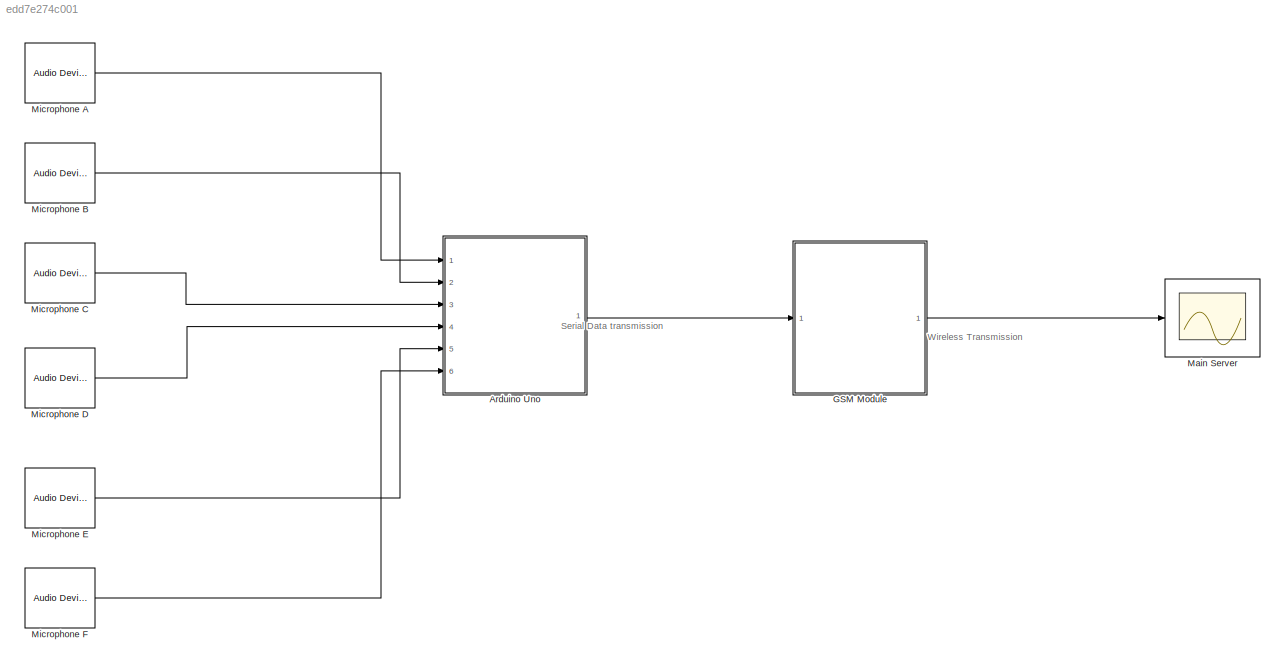
MODEL slx_edd7e274c001
KIND model
CONFIG AbsTol = auto
CONFIG FixedStep = auto
CONFIG MaxStep = auto
CONFIG MinStep = auto
CONFIG RelTol = 1e-3
CONFIG SampleTimeConstraint = Unconstrained
CONFIG Solver = VariableStepAuto
CONFIG SolverMode = Auto
CONFIG SolverName = VariableStepAuto
CONFIG StartTime = 0.0
CONFIG StopTime = 10.0
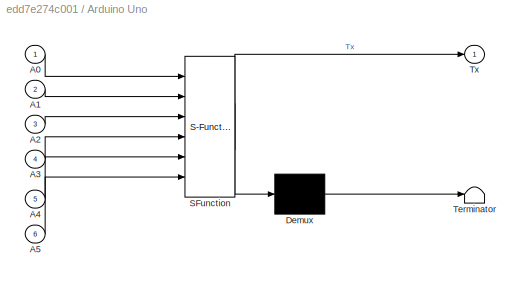
BLOCK [SubSystem] Arduino Uno
  ErrorFcn = Stateflow.Translate.translate
  PermitHierarchicalResolution = ExplicitOnly
  Ports = [6, 1]
  RequestExecContextInheritance = off
  SFBlockType = MATLAB Function
  TreatAsAtomicUnit = on
  Variant = off
BLOCK [Demux] Arduino Uno/ Demux 
  Outputs = 1
  Ports = [1, 1]
BLOCK [S-Function] Arduino Uno/ SFunction 
  EnableBusSupport = on
  FunctionName = sf_sfun
  PortCounts = [6 2]
  Ports = [6, 2]
  SFunctionDeploymentMode = off
  Tag = Stateflow S-Function Detection_subsystem 2
BLOCK [Terminator] Arduino Uno/ Terminator 
BLOCK [Inport] Arduino Uno/A0
  IconDisplay = Port number
BLOCK [Inport] Arduino Uno/A1
  IconDisplay = Port number
  Port = 2
BLOCK [Inport] Arduino Uno/A2
  IconDisplay = Port number
  Port = 3
BLOCK [Inport] Arduino Uno/A3
  IconDisplay = Port number
  Port = 4
BLOCK [Inport] Arduino Uno/A4
  IconDisplay = Port number
  Port = 5
BLOCK [Inport] Arduino Uno/A5
  IconDisplay = Port number
  Port = 6
BLOCK [Outport] Arduino Uno/Tx
  IconDisplay = Port number
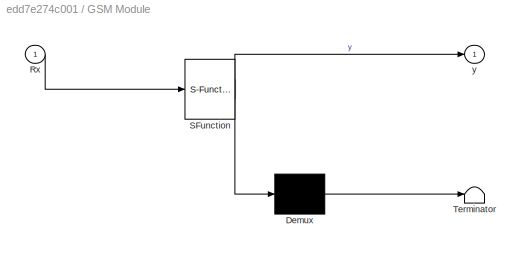
BLOCK [SubSystem] GSM Module
  ErrorFcn = Stateflow.Translate.translate
  PermitHierarchicalResolution = ExplicitOnly
  Ports = [1, 1]
  RequestExecContextInheritance = off
  SFBlockType = MATLAB Function
  TreatAsAtomicUnit = on
  Variant = off
BLOCK [Demux] GSM Module/ Demux 
  Outputs = 1
  Ports = [1, 1]
BLOCK [S-Function] GSM Module/ SFunction 
  EnableBusSupport = on
  FunctionName = sf_sfun
  PortCounts = [1 2]
  Ports = [1, 2]
  SFunctionDeploymentMode = off
  Tag = Stateflow S-Function Detection_subsystem 3
BLOCK [Terminator] GSM Module/ Terminator 
BLOCK [Inport] GSM Module/Rx
  IconDisplay = Port number
BLOCK [Outport] GSM Module/y
  IconDisplay = Port number
BLOCK [Scope] Main Server
  Ports = [1]
  ScopeSpecificationString = Simulink.scopes.TimeScopeBlockCfg('CurrentConfiguration', extmgr.ConfigurationSet(extmgr.Configuration('Core','General UI',true),extmgr.Configuration('Core','Source UI',true),extmgr.Configuration('Sources','WiredSimulink',true),extmgr.Configuration('Visuals','Time Domain',true),extmgr.Configuration('Tools','Plot Navigation',true),extmgr.Configuration('Tools','Measurements',true,'Version','2016a'))...<+19ch>
BLOCK [Reference] Microphone A   REF=audiosources/Audio Device
Reader
  Ports = [0, 1]
  SourceBlock = audiosources/Audio Device\nReader
  SourceType = Audio Device Reader
BLOCK [Reference] Microphone B  REF=audiosources/Audio Device
Reader
  Ports = [0, 1]
  SourceBlock = audiosources/Audio Device\nReader
  SourceType = Audio Device Reader
BLOCK [Reference] Microphone C  REF=audiosources/Audio Device
Reader
  Ports = [0, 1]
  SourceBlock = audiosources/Audio Device\nReader
  SourceType = Audio Device Reader
BLOCK [Reference] Microphone D  REF=audiosources/Audio Device
Reader
  Ports = [0, 1]
  SourceBlock = audiosources/Audio Device\nReader
  SourceType = Audio Device Reader
BLOCK [Reference] Microphone E  REF=audiosources/Audio Device
Reader
  Ports = [0, 1]
  SourceBlock = audiosources/Audio Device\nReader
  SourceType = Audio Device Reader
BLOCK [Reference] Microphone F  REF=audiosources/Audio Device
Reader
  Ports = [0, 1]
  SourceBlock = audiosources/Audio Device\nReader
  SourceType = Audio Device Reader
ANNOTATION (root): Serial Data transmission
ANNOTATION (root): Wireless Transmission
LINE Arduino Uno:1 -> GSM Module:1
LINE GSM Module:1 -> Main Server:1
LINE Microphone A :1 -> Arduino Uno:1
LINE Microphone B:1 -> Arduino Uno:2
LINE Microphone C:1 -> Arduino Uno:3
LINE Microphone D:1 -> Arduino Uno:4
LINE Microphone E:1 -> Arduino Uno:5
LINE Microphone F:1 -> Arduino Uno:6
CHART Arduino Uno states=1 transitions=1
  STATE_LABEL 'eML_blk_kernel()'
  STATE_LABEL 'SCRIPT:\nfunction Tx  = fcn(A0,A1,A2,A3,A4,A5)\n%#codegen\n  while(i<=1000)\n  {min_1 = min(A0,min_1);\n   max_1 = max(A0,max_1);\n   min_2 = min(A1,min_2);\n   max_2 = max(A1,max_2);\n   min_3 = min(A2,min_3);\n   max_3 = max(A2,max_3);\n   min_4 = min(A3,min_4);\n   max_4 = max(A3,max_4);\n   min_5 = min(A4,min_5);\n   max_5 = max(A4,max_5);\n   min_6 = min(A5,min_6);\n   max_6 = max(A5,max_6);\n   i++;\n   }\n  ...<+240ch>'
CHART GSM Module states=1 transitions=1
  STATE_LABEL 'eML_blk_kernel()'
  STATE_LABEL 'SCRIPT:\nfunction y = fcn(Rx)\n%#codegen\n\ny = u;'
